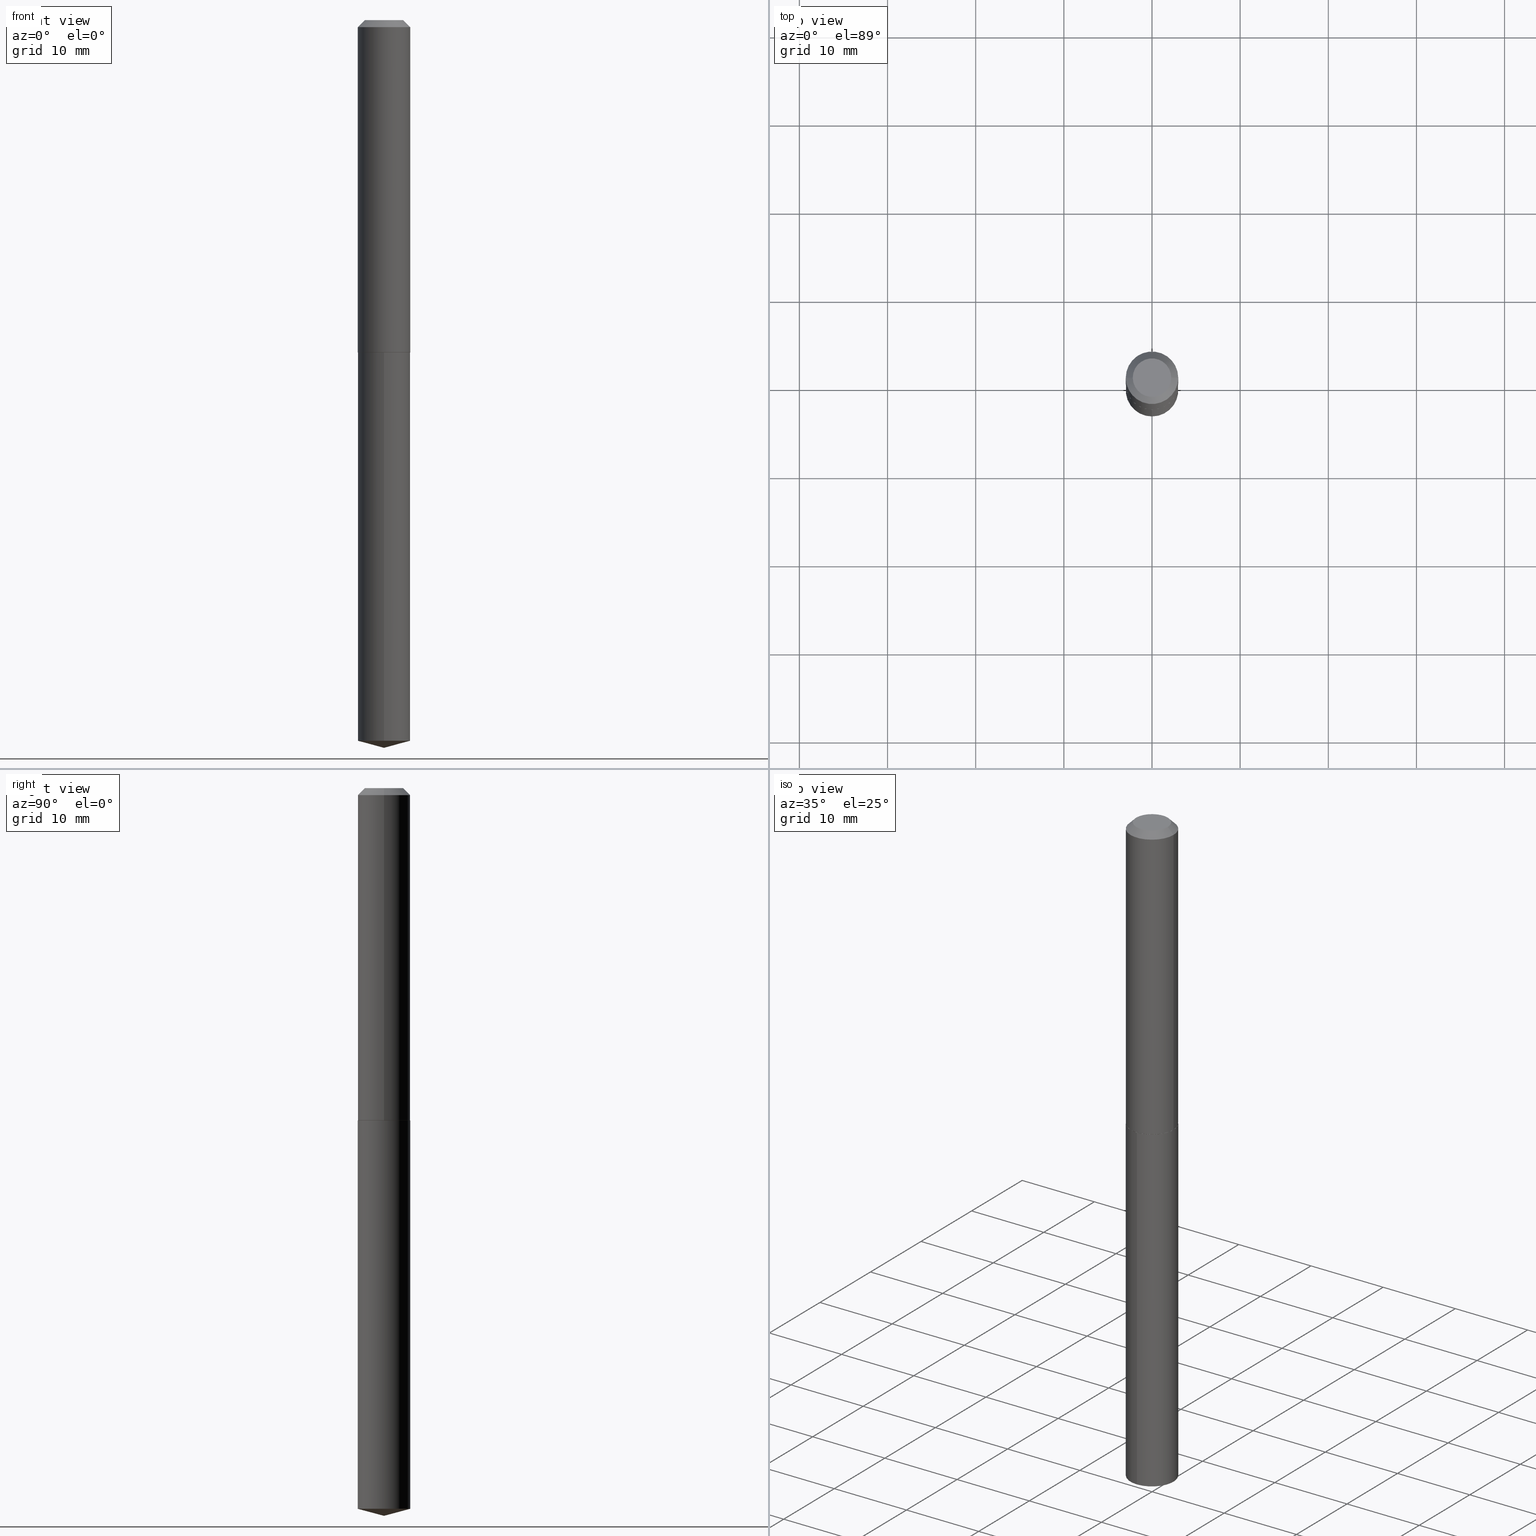
[diagram: canonical four-view strip — front | top / right | iso, engineering-drawing reading convention]
A machine part, canonical four-view strip (front | top / right | iso — engineering-drawing reading convention). The complete STEP part file that produces these views, byte-faithful:
ISO-10303-21;
HEADER;
FILE_DESCRIPTION (( 'STEP AP203' ),
    '1' );
FILE_NAME ('58056.STEP',
    '2024-04-23T01:03:44',
    ( '' ),
    ( '' ),
    'SwSTEP 2.0',
    'SolidWorks 2023',
    '' );
FILE_SCHEMA (( 'CONFIG_CONTROL_DESIGN' ));
ENDSEC;

DATA;
#1 = DIRECTION ( 'NONE',  ( 1.000000000000000000, -6.982962677686265922E-15, 4.876174969342488661E-29 ) ) ;
#2 = DIRECTION ( 'NONE',  ( -1.000000000000000000, 6.982962677686266711E-15, 0.000000000000000000 ) ) ;
#3 = CIRCLE ( 'NONE', #188, 0.1172000000000002068 ) ;
#4 = CARTESIAN_POINT ( 'NONE',  ( 3.628831161498124311E-29, -5.181009158709343395E-15, -1.483899999999999997 ) ) ;
#5 = FACE_OUTER_BOUND ( 'NONE', #290, .T. ) ;
#6 = CARTESIAN_POINT ( 'NONE',  ( 3.630053895901215991E-29, -5.182754899378764899E-15, -1.484399999999999942 ) ) ;
#7 = CARTESIAN_POINT ( 'NONE',  ( 3.630053895901215991E-29, -5.182754899378764899E-15, -1.484399999999999942 ) ) ;
#8 = EDGE_CURVE ( 'NONE', #285, #324, #113, .T. ) ;
#9 = PRODUCT_DEFINITION_SHAPE ( 'NONE', 'NONE',  #334 ) ;
#10 = LINE ( 'NONE', #363, #372 ) ;
#11 = ORIENTED_EDGE ( 'NONE', *, *, #274, .T. ) ;
#12 = ADVANCED_FACE ( 'NONE', ( #180 ), #193, .T. ) ;
#13 = DIRECTION ( 'NONE',  ( -1.000000000000000000, 6.982962677686265922E-15, -4.876176775795935793E-29 ) ) ;
#14 = ORIENTED_EDGE ( 'NONE', *, *, #310, .T. ) ;
#15 = ADVANCED_FACE ( 'NONE', ( #248 ), #222, .T. ) ;
#16 = DIRECTION ( 'NONE',  ( -2.445384282229124111E-29, 3.491602381958960283E-15, 1.000000000000000000 ) ) ;
#17 = ORIENTED_EDGE ( 'NONE', *, *, #89, .F. ) ;
#18 = DIRECTION ( 'NONE',  ( -2.445468806185136597E-29, 3.491481338843145583E-15, 1.000000000000000000 ) ) ;
#19 = EDGE_LOOP ( 'NONE', ( #349, #354, #67, #81 ) ) ;
#20 = APPROVAL ( #79, 'UNSPECIFIED' ) ;
#21 = VERTEX_POINT ( 'NONE', #217 ) ;
#22 = CIRCLE ( 'NONE', #121, 0.1171999999999999986 ) ;
#23 = CARTESIAN_POINT ( 'NONE',  ( -0.1172000000000000125, 7.092944339859816505E-16, -0.03125000000000020123 ) ) ;
#24 = DIRECTION ( 'NONE',  ( 1.000000000000000000, -6.982962677686266711E-15, 4.876176775795935793E-29 ) ) ;
#25 = PERSON_AND_ORGANIZATION ( #80, #152 ) ;
#26 = APPROVAL_DATE_TIME ( #151, #100 ) ;
#27 = CC_DESIGN_APPROVAL ( #100, ( #334 ) ) ;
#28 = EDGE_CURVE ( 'NONE', #206, #384, #385, .T. ) ;
#29 = DIRECTION ( 'NONE',  ( -6.982962677686265922E-15, -1.000000000000000000, 3.510303681827649899E-15 ) ) ;
#30 = DIRECTION ( 'NONE',  ( 2.445468806185136597E-29, -3.491481338843145583E-15, -1.000000000000000000 ) ) ;
#31 = FACE_OUTER_BOUND ( 'NONE', #262, .T. ) ;
#32 = CONICAL_SURFACE ( 'NONE', #256, 146.9311341562546147, 1.308996938995746540 ) ;
#33 = FACE_OUTER_BOUND ( 'NONE', #140, .T. ) ;
#34 = DIRECTION ( 'NONE',  ( -2.445468806185136597E-29, 3.491481338843145583E-15, 1.000000000000000000 ) ) ;
#35 = EDGE_LOOP ( 'NONE', ( #227, #42, #142, #326 ) ) ;
#36 = CC_DESIGN_DATE_AND_TIME_ASSIGNMENT ( #127, #97, ( #362 ) ) ;
#37 = LINE ( 'NONE', #345, #379 ) ;
#38 = DIRECTION ( 'NONE',  ( -6.982962677686265922E-15, -1.000000000000000000, 2.330928322239132474E-15 ) ) ;
#39 = ORIENTED_EDGE ( 'NONE', *, *, #343, .T. ) ;
#40 = CARTESIAN_POINT ( 'NONE',  ( -2.994835545909570354E-49, 4.275831445897321669E-35, 1.224646799147452871E-20 ) ) ;
#41 = CC_DESIGN_PERSON_AND_ORGANIZATION_ASSIGNMENT ( #178, #296, ( #276 ) ) ;
#42 = ORIENTED_EDGE ( 'NONE', *, *, #242, .T. ) ;
#43 = FACE_OUTER_BOUND ( 'NONE', #386, .T. ) ;
#44 = LOCAL_TIME ( 21, 3, 44.00000000000000000, #340 ) ;
#45 = EDGE_LOOP ( 'NONE', ( #191, #11 ) ) ;
#46 = CARTESIAN_POINT ( 'NONE',  ( 0.000000000000000000, 0.000000000000000000, 0.000000000000000000 ) ) ;
#47 = ORIENTED_EDGE ( 'NONE', *, *, #274, .F. ) ;
#48 = APPROVAL ( #278, 'UNSPECIFIED' ) ;
#49 = APPROVAL_ROLE ( '' ) ;
#50 = ORIENTED_EDGE ( 'NONE', *, *, #220, .F. ) ;
#51 = COORDINATED_UNIVERSAL_TIME_OFFSET ( 5, 0, .BEHIND. ) ;
#52 = AXIS2_PLACEMENT_3D ( 'NONE', #94, #309, #1 ) ;
#53 = CARTESIAN_POINT ( 'NONE',  ( -0.1172000000000000125, -1.812302888963257065E-15, -0.03125000000000020123 ) ) ;
#54 = AXIS2_PLACEMENT_3D ( 'NONE', #165, #34, #344 ) ;
#55 = DIRECTION ( 'NONE',  ( 1.000000000000000000, -6.982962677686266711E-15, 4.876176775795935793E-29 ) ) ;
#56 = DIRECTION ( 'NONE',  ( -1.000000000000000000, 6.982962677686266711E-15, 0.000000000000000000 ) ) ;
#57 = APPLICATION_PROTOCOL_DEFINITION ( 'international standard', 'config_control_design', 1994, #277 ) ;
#58 = ADVANCED_FACE ( 'NONE', ( #31 ), #128, .T. ) ;
#59 = DATE_AND_TIME ( #306, #44 ) ;
#60 = CIRCLE ( 'NONE', #105, 0.1172000000000000125 ) ;
#61 = FACE_OUTER_BOUND ( 'NONE', #175, .T. ) ;
#62 = CARTESIAN_POINT ( 'NONE',  ( 3.628831161498124311E-29, -5.181009158709343395E-15, -1.483899999999999997 ) ) ;
#63 = CIRCLE ( 'NONE', #329, 0.1167000000000001508 ) ;
#64 =( GEOMETRIC_REPRESENTATION_CONTEXT ( 3 ) GLOBAL_UNCERTAINTY_ASSIGNED_CONTEXT ( ( #325 ) ) GLOBAL_UNIT_ASSIGNED_CONTEXT ( ( #109, #116, #237 ) ) REPRESENTATION_CONTEXT ( 'NONE', 'WORKASPACE' ) );
#65 = EDGE_LOOP ( 'NONE', ( #170, #319, #317, #255 ) ) ;
#66 = DIRECTION ( 'NONE',  ( -2.445384282229124111E-29, 3.491602381958959889E-15, 1.000000000000000000 ) ) ;
#67 = ORIENTED_EDGE ( 'NONE', *, *, #269, .T. ) ;
#68 = DIRECTION ( 'NONE',  ( -2.445384282229124111E-29, 3.491602381958960283E-15, 1.000000000000000000 ) ) ;
#69 = DIRECTION ( 'NONE',  ( -6.982962677686265922E-15, -1.000000000000000000, 2.330928322239132474E-15 ) ) ;
#70 = APPROVAL_PERSON_ORGANIZATION ( #304, #48, #335 ) ;
#71 = DIRECTION ( 'NONE',  ( -2.445468806185136597E-29, 3.491481338843145583E-15, 1.000000000000000000 ) ) ;
#72 = CC_DESIGN_PERSON_AND_ORGANIZATION_ASSIGNMENT ( #270, #186, ( #276 ) ) ;
#73 = ORIENTED_EDGE ( 'NONE', *, *, #365, .F. ) ;
#74 = DIRECTION ( 'NONE',  ( -2.445468806185136877E-29, 3.491481338843145188E-15, 1.000000000000000000 ) ) ;
#75 = EDGE_LOOP ( 'NONE', ( #135, #381, #289 ) ) ;
#76 = CARTESIAN_POINT ( 'NONE',  ( 0.08595000000000001250, -7.514094800430678722E-16, 2.449293598767447098E-20 ) ) ;
#77 = AXIS2_PLACEMENT_3D ( 'NONE', #148, #333, #263 ) ;
#78 = ORIENTED_EDGE ( 'NONE', *, *, #220, .T. ) ;
#79 = APPROVAL_STATUS ( 'not_yet_approved' ) ;
#80 = PERSON ( 'UNSPECIFIED', 'UNSPECIFIED', 'UNSPECIFIED', ('UNSPECIFIED'), ('UNSPECIFIED'), ('UNSPECIFIED') ) ;
#81 = ORIENTED_EDGE ( 'NONE', *, *, #292, .F. ) ;
#82 = EDGE_CURVE ( 'NONE', #378, #273, #3, .T. ) ;
#83 = CALENDAR_DATE ( 2024, 22, 4 ) ;
#84 = DIRECTION ( 'NONE',  ( -2.445468806185136597E-29, 3.491481338843145583E-15, 1.000000000000000000 ) ) ;
#85 = LENGTH_MEASURE_WITH_UNIT ( LENGTH_MEASURE( 0.02539999999999999897 ), #268 );
#86 = ADVANCED_FACE ( 'NONE', ( #33 ), #103, .T. ) ;
#87 = DIRECTION ( 'NONE',  ( 1.000000000000000000, -6.982962677686265922E-15, 4.876176775795935793E-29 ) ) ;
#88 = CIRCLE ( 'NONE', #157, 0.1167000000000001508 ) ;
#89 = EDGE_CURVE ( 'NONE', #112, #197, #63, .T. ) ;
#90 = APPLICATION_CONTEXT ( 'configuration controlled 3d designs of mechanical parts and assemblies' ) ;
#91 = LOCAL_TIME ( 21, 3, 44.00000000000000000, #357 ) ;
#92 = ADVANCED_FACE ( 'NONE', ( #5 ), #341, .F. ) ;
#93 = CONICAL_SURFACE ( 'NONE', #147, 146.9311341562546147, 1.308996938995746540 ) ;
#94 = CARTESIAN_POINT ( 'NONE',  ( -5.989671091819140708E-49, 8.551662891794643338E-35, 2.449293598294905741E-20 ) ) ;
#95 = SECURITY_CLASSIFICATION_LEVEL ( 'unclassified' ) ;
#96 = CARTESIAN_POINT ( 'NONE',  ( 0.1167000000000001508, -5.997666643864751953E-15, -1.484399999999999498 ) ) ;
#97 = DATE_TIME_ROLE ( 'classification_date' ) ;
#98 = DIRECTION ( 'NONE',  ( 1.000000000000000000, -6.982962677686265922E-15, 0.000000000000000000 ) ) ;
#99 = CARTESIAN_POINT ( 'NONE',  ( -0.08595000000000001250, 6.547400380665580863E-16, 2.449293597856116307E-20 ) ) ;
#100 = APPROVAL ( #355, 'UNSPECIFIED' ) ;
#101 = LINE ( 'NONE', #318, #124 ) ;
#102 = CARTESIAN_POINT ( 'NONE',  ( -0.1172000000000002068, -4.348253072398504607E-15, -1.483899999999999997 ) ) ;
#103 = CONICAL_SURFACE ( 'NONE', #240, 0.1172000000000002068, 0.7853981633978751598 ) ;
#104 = DIRECTION ( 'NONE',  ( -2.445468806185136877E-29, 3.491481338843145188E-15, 1.000000000000000000 ) ) ;
#105 = AXIS2_PLACEMENT_3D ( 'NONE', #373, #375, #226 ) ;
#106 = ORIENTED_EDGE ( 'NONE', *, *, #201, .T. ) ;
#107 = LINE ( 'NONE', #350, #342 ) ;
#108 = EDGE_LOOP ( 'NONE', ( #383, #168, #260 ) ) ;
#109 =( CONVERSION_BASED_UNIT ( 'INCH', #85 ) LENGTH_UNIT ( ) NAMED_UNIT ( #177 ) );
#110 = ORIENTED_EDGE ( 'NONE', *, *, #300, .F. ) ;
#111 = APPLICATION_PROTOCOL_DEFINITION ( 'international standard', 'config_control_design', 1994, #90 ) ;
#112 = VERTEX_POINT ( 'NONE', #328 ) ;
#113 = CIRCLE ( 'NONE', #264, 0.1171999999999999986 ) ;
#114 = CALENDAR_DATE ( 2024, 22, 4 ) ;
#115 = VERTEX_POINT ( 'NONE', #53 ) ;
#116 =( NAMED_UNIT ( * ) PLANE_ANGLE_UNIT ( ) SI_UNIT ( $, .RADIAN. ) );
#117 = PLANE ( 'NONE',  #376 ) ;
#118 = ADVANCED_FACE ( 'NONE', ( #153 ), #187, .T. ) ;
#119 = DATE_AND_TIME ( #114, #302 ) ;
#120 = AXIS2_PLACEMENT_3D ( 'NONE', #283, #132, #320 ) ;
#121 = AXIS2_PLACEMENT_3D ( 'NONE', #380, #371, #38 ) ;
#122 = PERSON_AND_ORGANIZATION ( #80, #152 ) ;
#123 = DIRECTION ( 'NONE',  ( 1.000000000000000000, -6.982962677686264344E-15, 0.000000000000000000 ) ) ;
#124 = VECTOR ( 'NONE', #313, 39.37007874015748143 ) ;
#125 = CIRCLE ( 'NONE', #225, 0.1171999999999999986 ) ;
#126 = DIRECTION ( 'NONE',  ( -2.445384282229124111E-29, 3.491602381958960283E-15, 1.000000000000000000 ) ) ;
#127 = DATE_AND_TIME ( #364, #223 ) ;
#128 = CYLINDRICAL_SURFACE ( 'NONE', #294, 0.1172000000000001235 ) ;
#129 = ADVANCED_FACE ( 'NONE', ( #388 ), #117, .F. ) ;
#130 = CARTESIAN_POINT ( 'NONE',  ( 3.630053895901215991E-29, -5.182754899378764899E-15, -1.484399999999999942 ) ) ;
#131 = CC_DESIGN_APPROVAL ( #20, ( #276 ) ) ;
#132 = DIRECTION ( 'NONE',  ( -2.445384282229124111E-29, 3.491602381958960283E-15, 1.000000000000000000 ) ) ;
#133 = DIRECTION ( 'NONE',  ( -6.982962677686265922E-15, -1.000000000000000000, 2.330928322239132474E-15 ) ) ;
#134 = CARTESIAN_POINT ( 'NONE',  ( 3.628831161498124311E-29, -5.181009158709343395E-15, -1.483899999999999997 ) ) ;
#135 = ORIENTED_EDGE ( 'NONE', *, *, #353, .F. ) ;
#136 = CLOSED_SHELL ( 'NONE', ( #339, #144, #174, #118, #92 ) ) ;
#137 = CARTESIAN_POINT ( 'NONE',  ( -0.1172000000000002068, -4.348253072398504607E-15, -1.483899999999999997 ) ) ;
#138 = VECTOR ( 'NONE', #221, 39.37007874015747433 ) ;
#139 = CLOSED_SHELL ( 'NONE', ( #15, #58, #12, #129, #86, #382, #154, #212 ) ) ;
#140 = EDGE_LOOP ( 'NONE', ( #312, #176, #106, #231 ) ) ;
#141 = DIRECTION ( 'NONE',  ( 1.000000000000000000, -6.982962677686264344E-15, 0.000000000000000000 ) ) ;
#142 = ORIENTED_EDGE ( 'NONE', *, *, #300, .T. ) ;
#143 = COORDINATED_UNIVERSAL_TIME_OFFSET ( 5, 0, .BEHIND. ) ;
#144 = ADVANCED_FACE ( 'NONE', ( #210 ), #32, .T. ) ;
#145 = VERTEX_POINT ( 'NONE', #299 ) ;
#146 = ORIENTED_EDGE ( 'NONE', *, *, #234, .T. ) ;
#147 = AXIS2_PLACEMENT_3D ( 'NONE', #155, #126, #369 ) ;
#148 = CARTESIAN_POINT ( 'NONE',  ( 0.000000000000000000, 0.000000000000000000, 0.000000000000000000 ) ) ;
#149 = DESIGN_CONTEXT ( 'detailed design', #90, 'design' ) ;
#150 = DIRECTION ( 'NONE',  ( -2.445384282229124111E-29, 3.491602381958960283E-15, 1.000000000000000000 ) ) ;
#151 = DATE_AND_TIME ( #291, #203 ) ;
#152 = ORGANIZATION ( 'UNSPECIFIED', 'UNSPECIFIED', '' ) ;
#153 = FACE_OUTER_BOUND ( 'NONE', #19, .T. ) ;
#154 = ADVANCED_FACE ( 'NONE', ( #61 ), #314, .T. ) ;
#155 = CARTESIAN_POINT ( 'NONE',  ( -8.832734735669913668E-28, 1.261171326420801775E-13, 36.12007874015748143 ) ) ;
#156 = AXIS2_PLACEMENT_3D ( 'NONE', #298, #150, #267 ) ;
#157 = AXIS2_PLACEMENT_3D ( 'NONE', #254, #228, #141 ) ;
#158 = AXIS2_PLACEMENT_3D ( 'NONE', #185, #30, #2 ) ;
#159 = DIRECTION ( 'NONE',  ( -2.445468806185136597E-29, 3.491481338843145583E-15, 1.000000000000000000 ) ) ;
#160 = PRODUCT_RELATED_PRODUCT_CATEGORY ( 'detail', '', ( #161 ) ) ;
#161 = PRODUCT ( '58056', '58056', '', ( #327 ) ) ;
#162 = DIRECTION ( 'NONE',  ( -2.445468806185136597E-29, 3.491481338843145583E-15, 1.000000000000000000 ) ) ;
#163 = DIRECTION ( 'NONE',  ( 1.000000000000000000, -6.982962677686265922E-15, 0.000000000000000000 ) ) ;
#164 = CIRCLE ( 'NONE', #120, 0.1171999999999999986 ) ;
#165 = CARTESIAN_POINT ( 'NONE',  ( 7.642090019328600035E-31, -1.091087918388489897E-16, -0.03125000000000020123 ) ) ;
#166 = CC_DESIGN_PERSON_AND_ORGANIZATION_ASSIGNMENT ( #25, #331, ( #161 ) ) ;
#167 = PLANE ( 'NONE',  #195 ) ;
#168 = ORIENTED_EDGE ( 'NONE', *, *, #353, .T. ) ;
#169 = LINE ( 'NONE', #286, #271 ) ;
#170 = ORIENTED_EDGE ( 'NONE', *, *, #246, .T. ) ;
#171 = APPROVAL_PERSON_ORGANIZATION ( #235, #20, #266 ) ;
#172 = DIRECTION ( 'NONE',  ( 0.7071067811868493314, -2.468850131085418026E-15, 0.7071067811862457031 ) ) ;
#173 = ORIENTED_EDGE ( 'NONE', *, *, #28, .F. ) ;
#174 = ADVANCED_FACE ( 'NONE', ( #305 ), #93, .T. ) ;
#175 = EDGE_LOOP ( 'NONE', ( #229, #173, #199, #202 ) ) ;
#176 = ORIENTED_EDGE ( 'NONE', *, *, #89, .T. ) ;
#177 = DIMENSIONAL_EXPONENTS ( 1.000000000000000000, 0.000000000000000000, 0.000000000000000000, 0.000000000000000000, 0.000000000000000000, 0.000000000000000000, 0.000000000000000000 ) ;
#178 = PERSON_AND_ORGANIZATION ( #80, #152 ) ;
#179 = CC_DESIGN_DATE_AND_TIME_ASSIGNMENT ( #119, #261, ( #334 ) ) ;
#180 = FACE_OUTER_BOUND ( 'NONE', #65, .T. ) ;
#181 = LINE ( 'NONE', #23, #308 ) ;
#182 = DIRECTION ( 'NONE',  ( -2.445384282229124111E-29, 3.491602381958960283E-15, 1.000000000000000000 ) ) ;
#183 = FACE_OUTER_BOUND ( 'NONE', #35, .T. ) ;
#184 = PERSON_AND_ORGANIZATION_ROLE ( 'classification_officer' ) ;
#185 = CARTESIAN_POINT ( 'NONE',  ( 7.642090019328600035E-31, -1.091087918388489897E-16, -0.03125000000000020123 ) ) ;
#186 = PERSON_AND_ORGANIZATION_ROLE ( 'design_supplier' ) ;
#187 = CYLINDRICAL_SURFACE ( 'NONE', #156, 0.1171999999999999986 ) ;
#188 = AXIS2_PLACEMENT_3D ( 'NONE', #4, #367, #307 ) ;
#189 = CARTESIAN_POINT ( 'NONE',  ( 7.642090019328600035E-31, -1.091087918388489897E-16, -0.03125000000000020123 ) ) ;
#190 = DIRECTION ( 'NONE',  ( -2.445468806185136597E-29, 3.491481338843145583E-15, 1.000000000000000000 ) ) ;
#191 = ORIENTED_EDGE ( 'NONE', *, *, #28, .T. ) ;
#192 = CARTESIAN_POINT ( 'NONE',  ( 8.327560863109162941E-16, 0.1171999999999948083, -1.484400000000000164 ) ) ;
#193 = CONICAL_SURFACE ( 'NONE', #361, 0.1172000000000002068, 0.7853981633978751598 ) ;
#194 = CC_DESIGN_SECURITY_CLASSIFICATION ( #362, ( #276 ) ) ;
#195 = AXIS2_PLACEMENT_3D ( 'NONE', #40, #288, #13 ) ;
#196 = LINE ( 'NONE', #374, #377 ) ;
#197 = VERTEX_POINT ( 'NONE', #96 ) ;
#198 = FACE_OUTER_BOUND ( 'NONE', #45, .T. ) ;
#199 = ORIENTED_EDGE ( 'NONE', *, *, #365, .T. ) ;
#200 = LINE ( 'NONE', #282, #138 ) ;
#201 = EDGE_CURVE ( 'NONE', #197, #378, #216, .T. ) ;
#202 = ORIENTED_EDGE ( 'NONE', *, *, #252, .T. ) ;
#203 = LOCAL_TIME ( 21, 3, 44.00000000000000000, #51 ) ;
#204 = EDGE_LOOP ( 'NONE', ( #356, #17 ) ) ;
#205 = CARTESIAN_POINT ( 'NONE',  ( 0.1172000000000002068, -5.999412384534175034E-15, -1.483899999999999997 ) ) ;
#206 = VERTEX_POINT ( 'NONE', #99 ) ;
#207 = CC_DESIGN_PERSON_AND_ORGANIZATION_ASSIGNMENT ( #389, #323, ( #334 ) ) ;
#208 = APPROVAL_DATE_TIME ( #239, #20 ) ;
#209 = DIRECTION ( 'NONE',  ( 1.000000000000000000, -6.982962677686265922E-15, 0.000000000000000000 ) ) ;
#210 = FACE_OUTER_BOUND ( 'NONE', #108, .T. ) ;
#211 = CIRCLE ( 'NONE', #257, 0.1172000000000002068 ) ;
#212 = ADVANCED_FACE ( 'NONE', ( #198 ), #167, .F. ) ;
#213 = AXIS2_PLACEMENT_3D ( 'NONE', #130, #249, #275 ) ;
#214 = EDGE_CURVE ( 'NONE', #112, #273, #284, .T. ) ;
#215 = CARTESIAN_POINT ( 'NONE',  ( 3.628831161498124311E-29, -5.181009158709343395E-15, -1.483899999999999997 ) ) ;
#216 = LINE ( 'NONE', #219, #368 ) ;
#217 = CARTESIAN_POINT ( 'NONE',  ( 0.1172000000000000125, -9.275120176636795560E-16, -0.03125000000000020123 ) ) ;
#218 = DIRECTION ( 'NONE',  ( -0.7071067811868493314, 7.493145998871445944E-15, 0.7071067811862457031 ) ) ;
#219 = CARTESIAN_POINT ( 'NONE',  ( 0.1172000000000002068, -5.999412384534175034E-15, -1.483899999999999997 ) ) ;
#220 = EDGE_CURVE ( 'NONE', #145, #265, #125, .T. ) ;
#221 = DIRECTION ( 'NONE',  ( -6.745023994389837555E-15, -0.9659258262890673130, 0.2588190451025248473 ) ) ;
#222 = CONICAL_SURFACE ( 'NONE', #245, 0.1172000000000000125, 0.7853981633974452814 ) ;
#223 = LOCAL_TIME ( 21, 3, 44.00000000000000000, #337 ) ;
#224 = MANIFOLD_SOLID_BREP ( 'Body-Move/Copy2[1]', #136 ) ;
#225 = AXIS2_PLACEMENT_3D ( 'NONE', #6, #68, #69 ) ;
#226 = DIRECTION ( 'NONE',  ( 1.000000000000000000, -6.982962677686266711E-15, 0.000000000000000000 ) ) ;
#227 = ORIENTED_EDGE ( 'NONE', *, *, #234, .F. ) ;
#228 = DIRECTION ( 'NONE',  ( -2.445468806185136597E-29, 3.491481338843145583E-15, 1.000000000000000000 ) ) ;
#229 = ORIENTED_EDGE ( 'NONE', *, *, #343, .F. ) ;
#230 = DIRECTION ( 'NONE',  ( 6.863315791527689526E-15, 0.9659258262890689783, 0.2588190451025179639 ) ) ;
#231 = ORIENTED_EDGE ( 'NONE', *, *, #242, .F. ) ;
#232 = AXIS2_PLACEMENT_3D ( 'NONE', #46, #18, #55 ) ;
#233 = ORIENTED_EDGE ( 'NONE', *, *, #281, .T. ) ;
#234 = EDGE_CURVE ( 'NONE', #273, #115, #37, .T. ) ;
#235 = PERSON_AND_ORGANIZATION ( #80, #152 ) ;
#236 = ORIENTED_EDGE ( 'NONE', *, *, #269, .F. ) ;
#237 =( NAMED_UNIT ( * ) SI_UNIT ( $, .STERADIAN. ) SOLID_ANGLE_UNIT ( ) );
#238 = CARTESIAN_POINT ( 'NONE',  ( 3.630053895901215431E-29, -5.182754899378763321E-15, -1.484399999999999498 ) ) ;
#239 = DATE_AND_TIME ( #83, #91 ) ;
#240 = AXIS2_PLACEMENT_3D ( 'NONE', #62, #370, #98 ) ;
#241 = APPROVAL_DATE_TIME ( #59, #48 ) ;
#242 = EDGE_CURVE ( 'NONE', #273, #378, #211, .T. ) ;
#243 = SHAPE_DEFINITION_REPRESENTATION ( #9, #272 ) ;
#244 = DIRECTION ( 'NONE',  ( -2.445384282229124111E-29, 3.491602381958960283E-15, 1.000000000000000000 ) ) ;
#245 = AXIS2_PLACEMENT_3D ( 'NONE', #189, #338, #56 ) ;
#246 = EDGE_CURVE ( 'NONE', #197, #112, #88, .T. ) ;
#247 = CARTESIAN_POINT ( 'NONE',  ( 0.000000000000000000, 0.000000000000000000, 0.000000000000000000 ) ) ;
#248 = FACE_OUTER_BOUND ( 'NONE', #287, .T. ) ;
#249 = DIRECTION ( 'NONE',  ( 2.445384282229124111E-29, -3.491602381958959889E-15, -1.000000000000000000 ) ) ;
#250 = CIRCLE ( 'NONE', #295, 0.08595000000000001250 ) ;
#251 = CYLINDRICAL_SURFACE ( 'NONE', #366, 0.1171999999999999986 ) ;
#252 = EDGE_CURVE ( 'NONE', #115, #21, #60, .T. ) ;
#253 = CARTESIAN_POINT ( 'NONE',  ( 8.327560863109157025E-16, 0.1171999999999887299, -3.218596354647072832 ) ) ;
#254 = CARTESIAN_POINT ( 'NONE',  ( 3.630053895901215431E-29, -5.182754899378763321E-15, -1.484399999999999498 ) ) ;
#255 = ORIENTED_EDGE ( 'NONE', *, *, #201, .F. ) ;
#256 = AXIS2_PLACEMENT_3D ( 'NONE', #332, #182, #29 ) ;
#257 = AXIS2_PLACEMENT_3D ( 'NONE', #134, #190, #163 ) ;
#258 = DIRECTION ( 'NONE',  ( 1.000000000000000000, -6.982962677686265922E-15, 4.876174969342488661E-29 ) ) ;
#259 = VERTEX_POINT ( 'NONE', #347 ) ;
#260 = ORIENTED_EDGE ( 'NONE', *, *, #8, .F. ) ;
#261 = DATE_TIME_ROLE ( 'creation_date' ) ;
#262 = EDGE_LOOP ( 'NONE', ( #351, #146, #321, #110 ) ) ;
#263 = DIRECTION ( 'NONE',  ( 1.000000000000000000, 0.000000000000000000, 0.000000000000000000 ) ) ;
#264 = AXIS2_PLACEMENT_3D ( 'NONE', #279, #244, #280 ) ;
#265 = VERTEX_POINT ( 'NONE', #192 ) ;
#266 = APPROVAL_ROLE ( '' ) ;
#267 = DIRECTION ( 'NONE',  ( -6.982962677686265922E-15, -1.000000000000000000, 2.330928322239132474E-15 ) ) ;
#268 =( LENGTH_UNIT ( ) NAMED_UNIT ( * ) SI_UNIT ( $, .METRE. ) );
#269 = EDGE_CURVE ( 'NONE', #285, #145, #101, .T. ) ;
#270 = PERSON_AND_ORGANIZATION ( #80, #152 ) ;
#271 = VECTOR ( 'NONE', #66, 39.37007874015748143 ) ;
#272 = ADVANCED_BREP_SHAPE_REPRESENTATION ( '58056', ( #224, #359, #77 ), #64 ) ;
#273 = VERTEX_POINT ( 'NONE', #102 ) ;
#274 = EDGE_CURVE ( 'NONE', #384, #206, #250, .T. ) ;
#275 = DIRECTION ( 'NONE',  ( 6.982962677686265922E-15, 1.000000000000000000, -3.491602381958959889E-15 ) ) ;
#276 = PRODUCT_DEFINITION_FORMATION_WITH_SPECIFIED_SOURCE ( 'ANY', '', #161, .NOT_KNOWN. ) ;
#277 = APPLICATION_CONTEXT ( 'configuration controlled 3d designs of mechanical parts and assemblies' ) ;
#278 = APPROVAL_STATUS ( 'not_yet_approved' ) ;
#279 = CARTESIAN_POINT ( 'NONE',  ( 7.870830403854212506E-29, -1.123787902204902802E-14, -3.218596354647072388 ) ) ;
#280 = DIRECTION ( 'NONE',  ( -6.982962677686265922E-15, -1.000000000000000000, 4.661856644478264948E-15 ) ) ;
#281 = EDGE_CURVE ( 'NONE', #324, #265, #169, .T. ) ;
#282 = CARTESIAN_POINT ( 'NONE',  ( 7.947498917244653151E-29, -1.134770774136662220E-14, -3.250000000000000000 ) ) ;
#283 = CARTESIAN_POINT ( 'NONE',  ( 7.870830403854212506E-29, -1.123787902204902802E-14, -3.218596354647072388 ) ) ;
#284 = LINE ( 'NONE', #137, #297 ) ;
#285 = VERTEX_POINT ( 'NONE', #311 ) ;
#286 = CARTESIAN_POINT ( 'NONE',  ( 8.327560863108735971E-16, 0.1171999999999948083, -1.484400000000000164 ) ) ;
#287 = EDGE_LOOP ( 'NONE', ( #47, #39, #14, #73 ) ) ;
#288 = DIRECTION ( 'NONE',  ( 2.438088387897960049E-29, -3.491481338843145188E-15, -1.000000000000000000 ) ) ;
#289 = ORIENTED_EDGE ( 'NONE', *, *, #316, .F. ) ;
#290 = EDGE_LOOP ( 'NONE', ( #78, #293 ) ) ;
#291 = CALENDAR_DATE ( 2024, 22, 4 ) ;
#292 = EDGE_CURVE ( 'NONE', #265, #145, #22, .T. ) ;
#293 = ORIENTED_EDGE ( 'NONE', *, *, #292, .T. ) ;
#294 = AXIS2_PLACEMENT_3D ( 'NONE', #247, #84, #24 ) ;
#295 = AXIS2_PLACEMENT_3D ( 'NONE', #348, #71, #258 ) ;
#296 = PERSON_AND_ORGANIZATION_ROLE ( 'creator' ) ;
#297 = VECTOR ( 'NONE', #218, 39.37007874015748143 ) ;
#298 = CARTESIAN_POINT ( 'NONE',  ( 3.630053895901215991E-29, -5.182754899378764899E-15, -1.484399999999999942 ) ) ;
#299 = CARTESIAN_POINT ( 'NONE',  ( -8.184032258247940691E-16, -0.1172000000000051889, -1.484399999999999498 ) ) ;
#300 = EDGE_CURVE ( 'NONE', #378, #21, #107, .T. ) ;
#301 = PERSON_AND_ORGANIZATION ( #80, #152 ) ;
#302 = LOCAL_TIME ( 21, 3, 44.00000000000000000, #143 ) ;
#303 = EDGE_CURVE ( 'NONE', #259, #285, #200, .T. ) ;
#304 = PERSON_AND_ORGANIZATION ( #80, #152 ) ;
#305 = FACE_OUTER_BOUND ( 'NONE', #75, .T. ) ;
#306 = CALENDAR_DATE ( 2024, 22, 4 ) ;
#307 = DIRECTION ( 'NONE',  ( 1.000000000000000000, -6.982962677686265922E-15, 0.000000000000000000 ) ) ;
#308 = VECTOR ( 'NONE', #352, 39.37007874015748143 ) ;
#309 = DIRECTION ( 'NONE',  ( -2.445468806185136597E-29, 3.491481338843145583E-15, 1.000000000000000000 ) ) ;
#310 = EDGE_CURVE ( 'NONE', #21, #115, #330, .T. ) ;
#311 = CARTESIAN_POINT ( 'NONE',  ( -8.184032258247513720E-16, -0.1172000000000111841, -3.218596354647071944 ) ) ;
#312 = ORIENTED_EDGE ( 'NONE', *, *, #214, .F. ) ;
#313 = DIRECTION ( 'NONE',  ( -2.445384282229124111E-29, 3.491602381958959889E-15, 1.000000000000000000 ) ) ;
#314 = CONICAL_SURFACE ( 'NONE', #158, 0.1172000000000000125, 0.7853981633974452814 ) ;
#315 = DIRECTION ( 'NONE',  ( 0.7071067811865453523, -7.319954787623248157E-15, -0.7071067811865496822 ) ) ;
#316 = EDGE_CURVE ( 'NONE', #324, #285, #164, .T. ) ;
#317 = ORIENTED_EDGE ( 'NONE', *, *, #82, .F. ) ;
#318 = CARTESIAN_POINT ( 'NONE',  ( -8.184032258247940691E-16, -0.1172000000000051889, -1.484399999999999498 ) ) ;
#319 = ORIENTED_EDGE ( 'NONE', *, *, #214, .T. ) ;
#320 = DIRECTION ( 'NONE',  ( -6.982962677686265922E-15, -1.000000000000000000, 4.661856644478264948E-15 ) ) ;
#321 = ORIENTED_EDGE ( 'NONE', *, *, #310, .F. ) ;
#322 = APPROVAL_PERSON_ORGANIZATION ( #301, #100, #49 ) ;
#323 = PERSON_AND_ORGANIZATION_ROLE ( 'creator' ) ;
#324 = VERTEX_POINT ( 'NONE', #253 ) ;
#325 = UNCERTAINTY_MEASURE_WITH_UNIT (LENGTH_MEASURE( 1.000000000000000082E-05 ), #109, 'distance_accuracy_value', 'NONE');
#326 = ORIENTED_EDGE ( 'NONE', *, *, #252, .F. ) ;
#327 = MECHANICAL_CONTEXT ( 'NONE', #277, 'mechanical' ) ;
#328 = CARTESIAN_POINT ( 'NONE',  ( -0.1167000000000001508, -4.350902299572615019E-15, -1.484399999999999498 ) ) ;
#329 = AXIS2_PLACEMENT_3D ( 'NONE', #336, #159, #123 ) ;
#330 = CIRCLE ( 'NONE', #54, 0.1172000000000000125 ) ;
#331 = PERSON_AND_ORGANIZATION_ROLE ( 'design_owner' ) ;
#332 = CARTESIAN_POINT ( 'NONE',  ( -8.832734735669913668E-28, 1.261171326420801775E-13, 36.12007874015748143 ) ) ;
#333 = DIRECTION ( 'NONE',  ( 0.000000000000000000, 0.000000000000000000, 1.000000000000000000 ) ) ;
#334 = PRODUCT_DEFINITION ( 'UNKNOWN', '', #276, #149 ) ;
#335 = APPROVAL_ROLE ( '' ) ;
#336 = CARTESIAN_POINT ( 'NONE',  ( 3.630053895901215431E-29, -5.182754899378763321E-15, -1.484399999999999498 ) ) ;
#337 = COORDINATED_UNIVERSAL_TIME_OFFSET ( 5, 0, .BEHIND. ) ;
#338 = DIRECTION ( 'NONE',  ( 2.445468806185136597E-29, -3.491481338843145583E-15, -1.000000000000000000 ) ) ;
#339 = ADVANCED_FACE ( 'NONE', ( #43 ), #251, .T. ) ;
#340 = COORDINATED_UNIVERSAL_TIME_OFFSET ( 5, 0, .BEHIND. ) ;
#341 = PLANE ( 'NONE',  #213 ) ;
#342 = VECTOR ( 'NONE', #74, 39.37007874015748143 ) ;
#343 = EDGE_CURVE ( 'NONE', #384, #21, #196, .T. ) ;
#344 = DIRECTION ( 'NONE',  ( 1.000000000000000000, -6.982962677686266711E-15, 0.000000000000000000 ) ) ;
#345 = CARTESIAN_POINT ( 'NONE',  ( -0.1172000000000001235, 8.327560863108382955E-16, -5.764991925778755427E-30 ) ) ;
#346 = CC_DESIGN_PERSON_AND_ORGANIZATION_ASSIGNMENT ( #122, #184, ( #362 ) ) ;
#347 = CARTESIAN_POINT ( 'NONE',  ( 7.947498917244654272E-29, -1.134770774136662220E-14, -3.250000000000000000 ) ) ;
#348 = CARTESIAN_POINT ( 'NONE',  ( -5.989671091819140708E-49, 8.551662891794643338E-35, 2.449293598294905741E-20 ) ) ;
#349 = ORIENTED_EDGE ( 'NONE', *, *, #281, .F. ) ;
#350 = CARTESIAN_POINT ( 'NONE',  ( 0.1172000000000001235, -8.184032258248313428E-16, 5.714879181232842780E-30 ) ) ;
#351 = ORIENTED_EDGE ( 'NONE', *, *, #82, .T. ) ;
#352 = DIRECTION ( 'NONE',  ( -0.7071067811865453523, 2.468850131082234184E-15, -0.7071067811865496822 ) ) ;
#353 = EDGE_CURVE ( 'NONE', #259, #324, #10, .T. ) ;
#354 = ORIENTED_EDGE ( 'NONE', *, *, #316, .T. ) ;
#355 = APPROVAL_STATUS ( 'not_yet_approved' ) ;
#356 = ORIENTED_EDGE ( 'NONE', *, *, #246, .F. ) ;
#357 = COORDINATED_UNIVERSAL_TIME_OFFSET ( 5, 0, .BEHIND. ) ;
#358 = ORIENTED_EDGE ( 'NONE', *, *, #8, .T. ) ;
#359 = MANIFOLD_SOLID_BREP ( 'Body-Move/Copy2[2]', #139 ) ;
#360 = DIRECTION ( 'NONE',  ( -2.438088387897960049E-29, 3.491481338843145188E-15, 1.000000000000000000 ) ) ;
#361 = AXIS2_PLACEMENT_3D ( 'NONE', #215, #162, #209 ) ;
#362 = SECURITY_CLASSIFICATION ( '', '', #95 ) ;
#363 = CARTESIAN_POINT ( 'NONE',  ( 7.947752052366559165E-29, -1.134734838856438948E-14, -3.250000000000000000 ) ) ;
#364 = CALENDAR_DATE ( 2024, 22, 4 ) ;
#365 = EDGE_CURVE ( 'NONE', #206, #115, #181, .T. ) ;
#366 = AXIS2_PLACEMENT_3D ( 'NONE', #7, #16, #133 ) ;
#367 = DIRECTION ( 'NONE',  ( -2.445468806185136597E-29, 3.491481338843145583E-15, 1.000000000000000000 ) ) ;
#368 = VECTOR ( 'NONE', #172, 39.37007874015748143 ) ;
#369 = DIRECTION ( 'NONE',  ( -6.982962677686265922E-15, -1.000000000000000000, 3.510303681827649899E-15 ) ) ;
#370 = DIRECTION ( 'NONE',  ( -2.445468806185136597E-29, 3.491481338843145583E-15, 1.000000000000000000 ) ) ;
#371 = DIRECTION ( 'NONE',  ( -2.445384282229124111E-29, 3.491602381958960283E-15, 1.000000000000000000 ) ) ;
#372 = VECTOR ( 'NONE', #230, 39.37007874015749564 ) ;
#373 = CARTESIAN_POINT ( 'NONE',  ( 7.642090019328600035E-31, -1.091087918388489897E-16, -0.03125000000000020123 ) ) ;
#374 = CARTESIAN_POINT ( 'NONE',  ( 0.1172000000000000125, -9.131591571776726032E-16, -0.03125000000000020123 ) ) ;
#375 = DIRECTION ( 'NONE',  ( -2.445468806185136597E-29, 3.491481338843145583E-15, 1.000000000000000000 ) ) ;
#376 = AXIS2_PLACEMENT_3D ( 'NONE', #238, #360, #87 ) ;
#377 = VECTOR ( 'NONE', #315, 39.37007874015748143 ) ;
#378 = VERTEX_POINT ( 'NONE', #205 ) ;
#379 = VECTOR ( 'NONE', #104, 39.37007874015748143 ) ;
#380 = CARTESIAN_POINT ( 'NONE',  ( 3.630053895901215991E-29, -5.182754899378764899E-15, -1.484399999999999942 ) ) ;
#381 = ORIENTED_EDGE ( 'NONE', *, *, #303, .T. ) ;
#382 = ADVANCED_FACE ( 'NONE', ( #183 ), #387, .T. ) ;
#383 = ORIENTED_EDGE ( 'NONE', *, *, #303, .F. ) ;
#384 = VERTEX_POINT ( 'NONE', #76 ) ;
#385 = CIRCLE ( 'NONE', #52, 0.08595000000000001250 ) ;
#386 = EDGE_LOOP ( 'NONE', ( #358, #233, #50, #236 ) ) ;
#387 = CYLINDRICAL_SURFACE ( 'NONE', #232, 0.1172000000000001235 ) ;
#388 = FACE_OUTER_BOUND ( 'NONE', #204, .T. ) ;
#389 = PERSON_AND_ORGANIZATION ( #80, #152 ) ;
#390 = CC_DESIGN_APPROVAL ( #48, ( #362 ) ) ;
ENDSEC;
END-ISO-10303-21;
